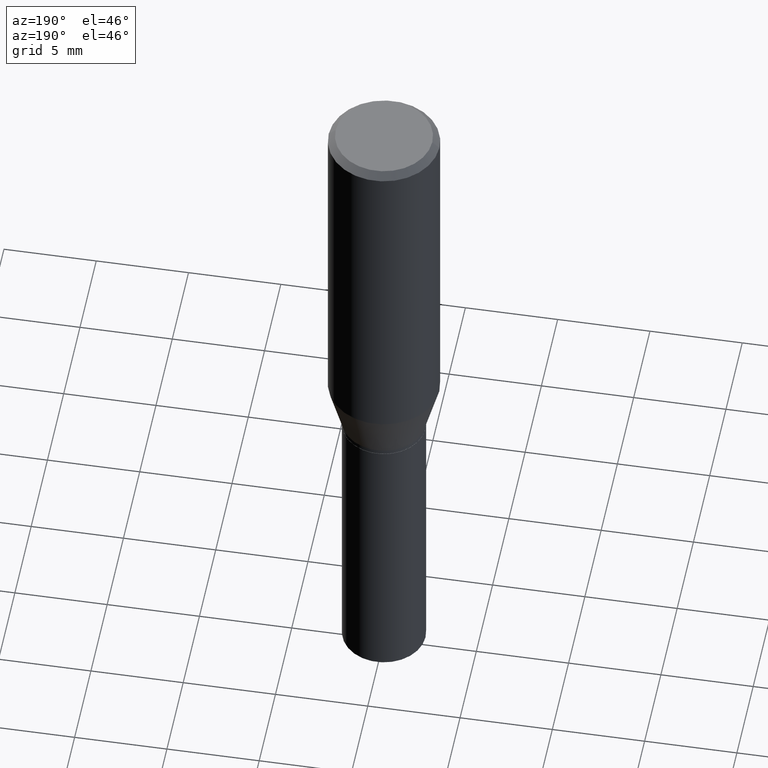
[diagram: clean part render]
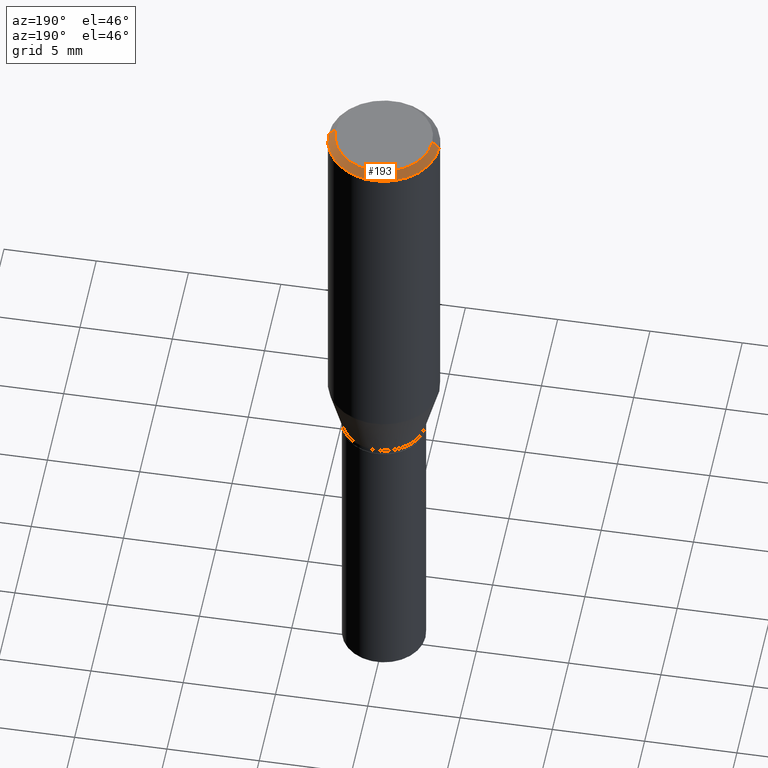
[diagram: same view with one face highlighted and labeled with its STEP entity id]
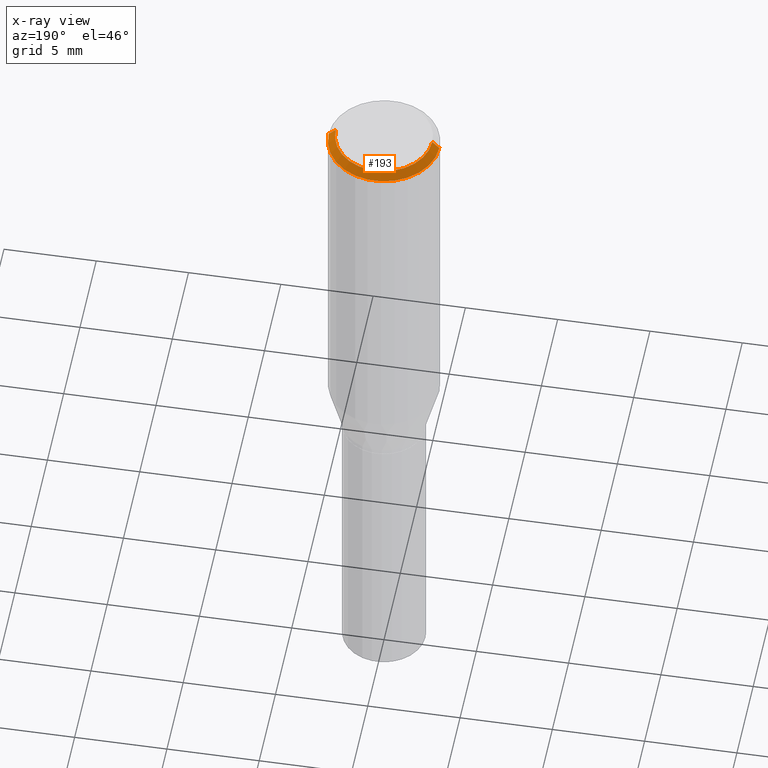
[diagram: x-ray of the same camera — body ghosted, the highlighted face saturated]
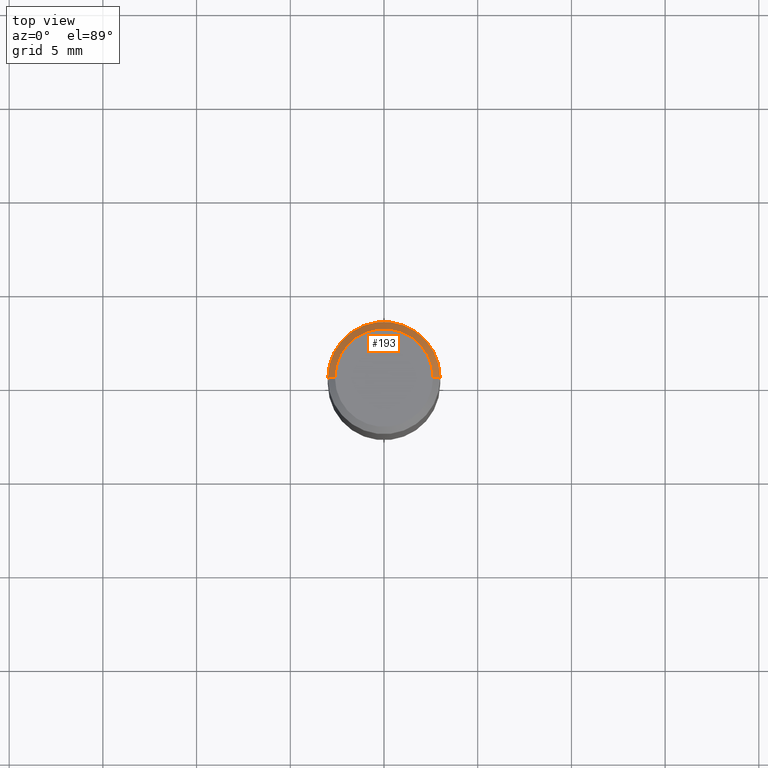
[diagram: same view with one face highlighted and labeled with its STEP entity id]
A machine part, auxiliary view. The second image highlights one B-rep face of the part: STEP entity #193.
The next image is the same camera in x-ray: the body ghosted, the highlighted face saturated — about 0% of this face is hidden behind the body in this view.
A second angle (top view) of the same face is appended — the face is thin or edge-on in the first view.
In plain terms, the highlighted conical surface has half-angle 45 deg.
Its self-contained STEP definition (entity closure, byte-faithful):
#16 = VERTEX_POINT ( 'NONE', #306 ) ;
#20 = DIRECTION ( 'NONE',  ( 1.000000000000000000, -6.982962677686266711E-15, 0.000000000000000000 ) ) ;
#25 = VERTEX_POINT ( 'NONE', #443 ) ;
#52 = DIRECTION ( 'NONE',  ( -2.445468806185136597E-29, 3.491481338843145583E-15, 1.000000000000000000 ) ) ;
#84 = LINE ( 'NONE', #117, #392 ) ;
#96 = VECTOR ( 'NONE', #356, 39.37007874015748854 ) ;
#100 = FACE_OUTER_BOUND ( 'NONE', #229, .T. ) ;
#106 = AXIS2_PLACEMENT_3D ( 'NONE', #442, #160, #20 ) ;
#113 = EDGE_CURVE ( 'NONE', #441, #16, #424, .T. ) ;
#117 = CARTESIAN_POINT ( 'NONE',  ( -0.1180999999999999966, 7.723156721521009862E-16, -0.01499999999999999944 ) ) ;
#160 = DIRECTION ( 'NONE',  ( -2.445468806185136597E-29, 3.491481338843145583E-15, 1.000000000000000000 ) ) ;
#193 = ADVANCED_FACE ( 'NONE', ( #100 ), #197, .T. ) ;
#197 = CONICAL_SURFACE ( 'NONE', #321, 0.1180999999999999966, 0.7853981633974543852 ) ;
#205 = CARTESIAN_POINT ( 'NONE',  ( 4.647400995173613138E-45, -6.635256932220833331E-31, -1.900413116462290932E-16 ) ) ;
#217 = CARTESIAN_POINT ( 'NONE',  ( 3.668203209277705088E-31, -5.237222008264718399E-17, -0.01499999999999999944 ) ) ;
#227 = ORIENTED_EDGE ( 'NONE', *, *, #425, .F. ) ;
#229 = EDGE_LOOP ( 'NONE', ( #421, #385, #378, #227 ) ) ;
#245 = DIRECTION ( 'NONE',  ( 2.445468806185136597E-29, -3.491481338843145583E-15, -1.000000000000000000 ) ) ;
#273 = VERTEX_POINT ( 'NONE', #391 ) ;
#282 = EDGE_CURVE ( 'NONE', #16, #273, #427, .T. ) ;
#290 = AXIS2_PLACEMENT_3D ( 'NONE', #205, #52, #455 ) ;
#306 = CARTESIAN_POINT ( 'NONE',  ( 0.1180999999999999966, -8.770601123173952432E-16, -0.01499999999999999944 ) ) ;
#321 = AXIS2_PLACEMENT_3D ( 'NONE', #217, #245, #398 ) ;
#324 = EDGE_CURVE ( 'NONE', #441, #25, #435, .T. ) ;
#346 = DIRECTION ( 'NONE',  ( -0.7071067811865516806, 2.468850131082300842E-15, -0.7071067811865431318 ) ) ;
#356 = DIRECTION ( 'NONE',  ( 0.7071067811865516806, -7.319954787623268667E-15, -0.7071067811865431318 ) ) ;
#378 = ORIENTED_EDGE ( 'NONE', *, *, #282, .T. ) ;
#385 = ORIENTED_EDGE ( 'NONE', *, *, #113, .T. ) ;
#391 = CARTESIAN_POINT ( 'NONE',  ( -0.1180999999999999966, -4.963484990620821929E-16, -0.01499999999999999944 ) ) ;
#392 = VECTOR ( 'NONE', #346, 39.37007874015748854 ) ;
#398 = DIRECTION ( 'NONE',  ( -1.000000000000000000, 6.982962677686266711E-15, 0.000000000000000000 ) ) ;
#401 = CARTESIAN_POINT ( 'NONE',  ( 0.1180999999999999966, -8.625970336194650129E-16, -0.01499999999999999944 ) ) ;
#409 = CARTESIAN_POINT ( 'NONE',  ( 0.1031000000000000111, -7.849571885948552706E-16, -1.900413116462238423E-16 ) ) ;
#421 = ORIENTED_EDGE ( 'NONE', *, *, #324, .F. ) ;
#424 = LINE ( 'NONE', #401, #96 ) ;
#425 = EDGE_CURVE ( 'NONE', #25, #273, #84, .T. ) ;
#427 = CIRCLE ( 'NONE', #106, 0.1180999999999999966 ) ;
#435 = CIRCLE ( 'NONE', #290, 0.1031000000000000111 ) ;
#441 = VERTEX_POINT ( 'NONE', #409 ) ;
#442 = CARTESIAN_POINT ( 'NONE',  ( 3.668203209277705088E-31, -5.237222008264718399E-17, -0.01499999999999999944 ) ) ;
#443 = CARTESIAN_POINT ( 'NONE',  ( -0.1031000000000000111, 7.461295621107772493E-16, -1.900413116462341961E-16 ) ) ;
#455 = DIRECTION ( 'NONE',  ( 1.000000000000000000, -6.982962677686265922E-15, 4.883331232093008327E-29 ) ) ;